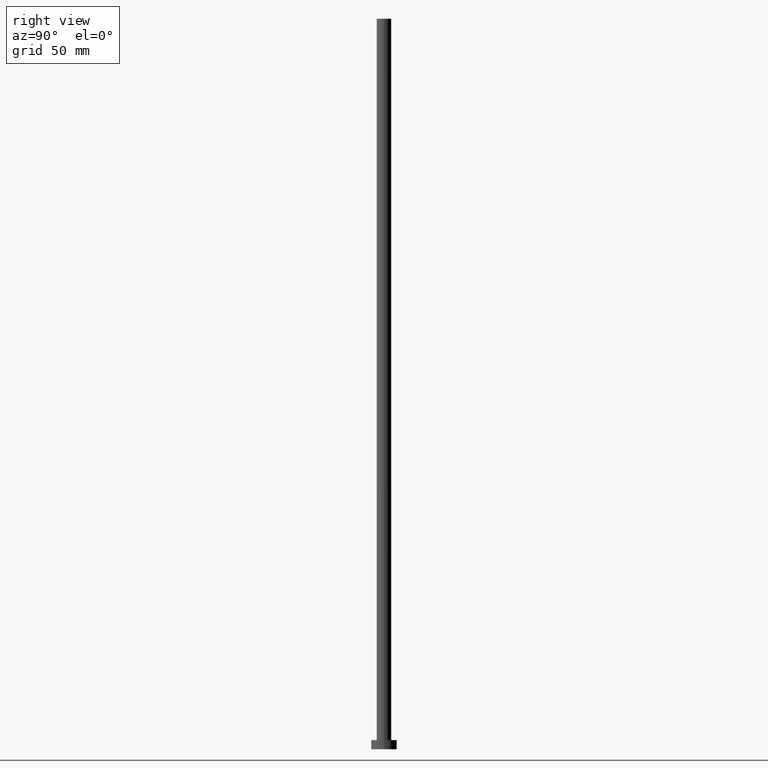
[diagram: clean part render]
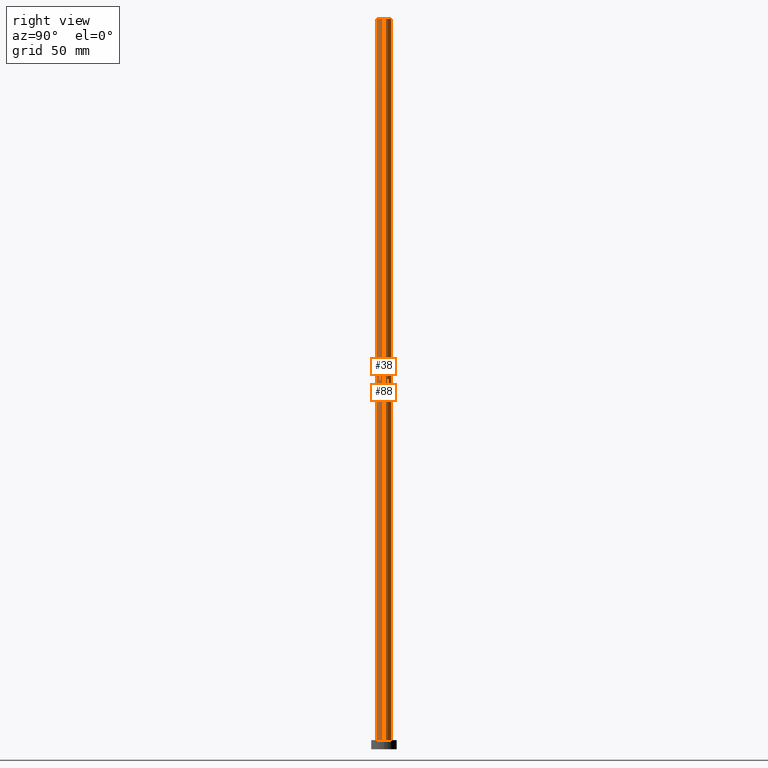
[diagram: same view with one multi-face feature highlighted, each face labeled with its STEP entity id]
A machine part, right view. The highlighted faces form ONE feature: a constant-radius fillet chain: 2 tangent blend faces with common blend radius 4 mm. The faces share edges in the B-rep.
Their STEP definitions:
[1] entity #38 (Cylinder):
#26 = DIRECTION ( 'NONE',  ( -0.000000000000000000, -0.000000000000000000, -1.000000000000000000 ) ) ;
#30 = VERTEX_POINT ( 'NONE', #204 ) ;
#31 = CARTESIAN_POINT ( 'NONE',  ( 4.000000000000000000, 4.898587196589411843E-16, 5.000000000000000000 ) ) ;
#32 = DIRECTION ( 'NONE',  ( -0.000000000000000000, -0.000000000000000000, -1.000000000000000000 ) ) ;
#38 = ADVANCED_FACE ( 'NONE', ( #142 ), #146, .T. ) ;
#53 = CARTESIAN_POINT ( 'NONE',  ( 0.000000000000000000, 0.000000000000000000, 5.000000000000000000 ) ) ;
#57 = CARTESIAN_POINT ( 'NONE',  ( 4.000000000000000000, 4.898587196589411843E-16, 400.0000000000000000 ) ) ;
#66 = VERTEX_POINT ( 'NONE', #184 ) ;
#74 = LINE ( 'NONE', #91, #139 ) ;
#86 = CARTESIAN_POINT ( 'NONE',  ( 0.000000000000000000, 0.000000000000000000, 400.0000000000000000 ) ) ;
#89 = LINE ( 'NONE', #57, #239 ) ;
#91 = CARTESIAN_POINT ( 'NONE',  ( -4.000000000000000000, 0.000000000000000000, 400.0000000000000000 ) ) ;
#92 = DIRECTION ( 'NONE',  ( -0.000000000000000000, -0.000000000000000000, -1.000000000000000000 ) ) ;
#93 = EDGE_CURVE ( 'NONE', #66, #170, #89, .T. ) ;
#102 = EDGE_LOOP ( 'NONE', ( #209, #107, #225, #144 ) ) ;
#107 = ORIENTED_EDGE ( 'NONE', *, *, #178, .F. ) ;
#108 = VERTEX_POINT ( 'NONE', #212 ) ;
#111 = DIRECTION ( 'NONE',  ( 1.000000000000000000, 0.000000000000000000, 0.000000000000000000 ) ) ;
#115 = AXIS2_PLACEMENT_3D ( 'NONE', #177, #175, #111 ) ;
#127 = EDGE_CURVE ( 'NONE', #30, #108, #74, .T. ) ;
#139 = VECTOR ( 'NONE', #92, 1000.000000000000000 ) ;
#142 = FACE_OUTER_BOUND ( 'NONE', #102, .T. ) ;
#144 = ORIENTED_EDGE ( 'NONE', *, *, #193, .T. ) ;
#146 = CYLINDRICAL_SURFACE ( 'NONE', #176, 4.000000000000000000 ) ;
#148 = AXIS2_PLACEMENT_3D ( 'NONE', #53, #255, #194 ) ;
#158 = CIRCLE ( 'NONE', #148, 4.000000000000000000 ) ;
#170 = VERTEX_POINT ( 'NONE', #31 ) ;
#175 = DIRECTION ( 'NONE',  ( 0.000000000000000000, 0.000000000000000000, 1.000000000000000000 ) ) ;
#176 = AXIS2_PLACEMENT_3D ( 'NONE', #86, #26, #248 ) ;
#177 = CARTESIAN_POINT ( 'NONE',  ( 0.000000000000000000, 0.000000000000000000, 400.0000000000000000 ) ) ;
#178 = EDGE_CURVE ( 'NONE', #30, #66, #245, .T. ) ;
#184 = CARTESIAN_POINT ( 'NONE',  ( 4.000000000000000000, 4.898587196589411843E-16, 400.0000000000000000 ) ) ;
#193 = EDGE_CURVE ( 'NONE', #108, #170, #158, .T. ) ;
#194 = DIRECTION ( 'NONE',  ( 1.000000000000000000, 0.000000000000000000, 0.000000000000000000 ) ) ;
#204 = CARTESIAN_POINT ( 'NONE',  ( -4.000000000000000000, 0.000000000000000000, 400.0000000000000000 ) ) ;
#209 = ORIENTED_EDGE ( 'NONE', *, *, #93, .F. ) ;
#212 = CARTESIAN_POINT ( 'NONE',  ( -4.000000000000000000, 0.000000000000000000, 5.000000000000000000 ) ) ;
#225 = ORIENTED_EDGE ( 'NONE', *, *, #127, .T. ) ;
#239 = VECTOR ( 'NONE', #32, 1000.000000000000000 ) ;
#245 = CIRCLE ( 'NONE', #115, 4.000000000000000000 ) ;
#248 = DIRECTION ( 'NONE',  ( -1.000000000000000000, 0.000000000000000000, 0.000000000000000000 ) ) ;
#255 = DIRECTION ( 'NONE',  ( 0.000000000000000000, 0.000000000000000000, 1.000000000000000000 ) ) ;
[2] entity #88 (Cylinder):
#12 = EDGE_CURVE ( 'NONE', #170, #108, #153, .T. ) ;
#30 = VERTEX_POINT ( 'NONE', #204 ) ;
#31 = CARTESIAN_POINT ( 'NONE',  ( 4.000000000000000000, 4.898587196589411843E-16, 5.000000000000000000 ) ) ;
#32 = DIRECTION ( 'NONE',  ( -0.000000000000000000, -0.000000000000000000, -1.000000000000000000 ) ) ;
#45 = ORIENTED_EDGE ( 'NONE', *, *, #127, .F. ) ;
#57 = CARTESIAN_POINT ( 'NONE',  ( 4.000000000000000000, 4.898587196589411843E-16, 400.0000000000000000 ) ) ;
#66 = VERTEX_POINT ( 'NONE', #184 ) ;
#74 = LINE ( 'NONE', #91, #139 ) ;
#82 = ORIENTED_EDGE ( 'NONE', *, *, #12, .T. ) ;
#88 = ADVANCED_FACE ( 'NONE', ( #195 ), #150, .T. ) ;
#89 = LINE ( 'NONE', #57, #239 ) ;
#91 = CARTESIAN_POINT ( 'NONE',  ( -4.000000000000000000, 0.000000000000000000, 400.0000000000000000 ) ) ;
#92 = DIRECTION ( 'NONE',  ( -0.000000000000000000, -0.000000000000000000, -1.000000000000000000 ) ) ;
#93 = EDGE_CURVE ( 'NONE', #66, #170, #89, .T. ) ;
#108 = VERTEX_POINT ( 'NONE', #212 ) ;
#123 = DIRECTION ( 'NONE',  ( 0.000000000000000000, 0.000000000000000000, 1.000000000000000000 ) ) ;
#125 = CARTESIAN_POINT ( 'NONE',  ( 0.000000000000000000, 0.000000000000000000, 5.000000000000000000 ) ) ;
#127 = EDGE_CURVE ( 'NONE', #30, #108, #74, .T. ) ;
#133 = CARTESIAN_POINT ( 'NONE',  ( 0.000000000000000000, 0.000000000000000000, 400.0000000000000000 ) ) ;
#139 = VECTOR ( 'NONE', #92, 1000.000000000000000 ) ;
#140 = AXIS2_PLACEMENT_3D ( 'NONE', #125, #123, #247 ) ;
#150 = CYLINDRICAL_SURFACE ( 'NONE', #162, 4.000000000000000000 ) ;
#153 = CIRCLE ( 'NONE', #140, 4.000000000000000000 ) ;
#162 = AXIS2_PLACEMENT_3D ( 'NONE', #233, #174, #210 ) ;
#169 = ORIENTED_EDGE ( 'NONE', *, *, #231, .F. ) ;
#170 = VERTEX_POINT ( 'NONE', #31 ) ;
#174 = DIRECTION ( 'NONE',  ( -0.000000000000000000, -0.000000000000000000, -1.000000000000000000 ) ) ;
#184 = CARTESIAN_POINT ( 'NONE',  ( 4.000000000000000000, 4.898587196589411843E-16, 400.0000000000000000 ) ) ;
#190 = ORIENTED_EDGE ( 'NONE', *, *, #93, .T. ) ;
#195 = FACE_OUTER_BOUND ( 'NONE', #244, .T. ) ;
#204 = CARTESIAN_POINT ( 'NONE',  ( -4.000000000000000000, 0.000000000000000000, 400.0000000000000000 ) ) ;
#210 = DIRECTION ( 'NONE',  ( -1.000000000000000000, 0.000000000000000000, 0.000000000000000000 ) ) ;
#212 = CARTESIAN_POINT ( 'NONE',  ( -4.000000000000000000, 0.000000000000000000, 5.000000000000000000 ) ) ;
#214 = DIRECTION ( 'NONE',  ( 1.000000000000000000, 0.000000000000000000, 0.000000000000000000 ) ) ;
#230 = DIRECTION ( 'NONE',  ( 0.000000000000000000, 0.000000000000000000, 1.000000000000000000 ) ) ;
#231 = EDGE_CURVE ( 'NONE', #66, #30, #250, .T. ) ;
#233 = CARTESIAN_POINT ( 'NONE',  ( 0.000000000000000000, 0.000000000000000000, 400.0000000000000000 ) ) ;
#239 = VECTOR ( 'NONE', #32, 1000.000000000000000 ) ;
#244 = EDGE_LOOP ( 'NONE', ( #169, #190, #82, #45 ) ) ;
#247 = DIRECTION ( 'NONE',  ( 1.000000000000000000, 0.000000000000000000, 0.000000000000000000 ) ) ;
#250 = CIRCLE ( 'NONE', #254, 4.000000000000000000 ) ;
#254 = AXIS2_PLACEMENT_3D ( 'NONE', #133, #230, #214 ) ;